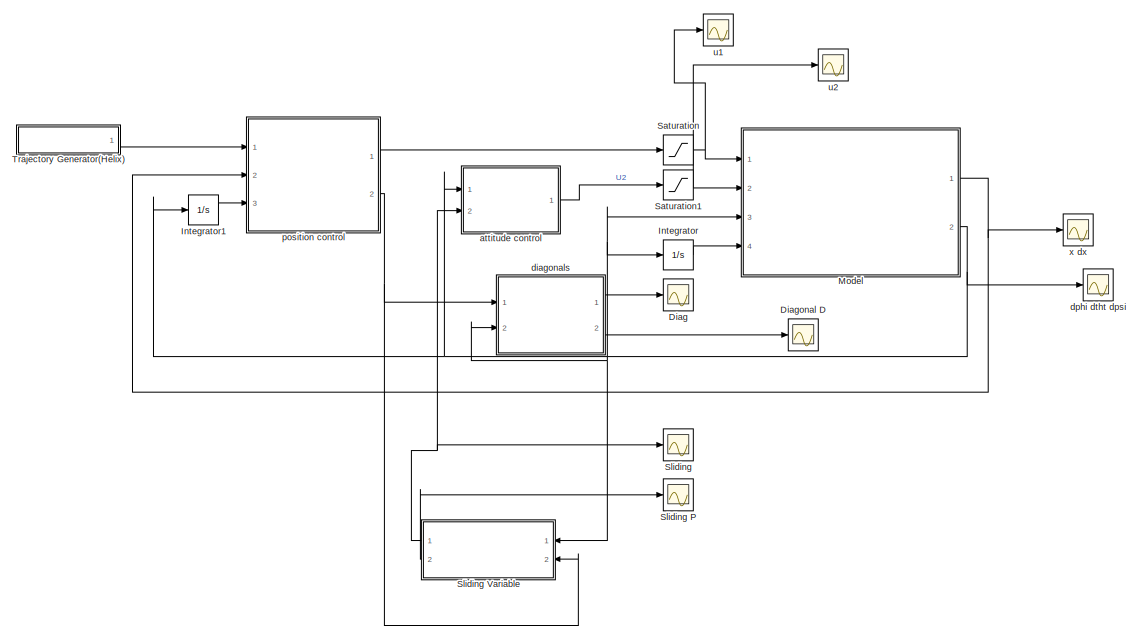
[diagram: root canvas - part 1/3, middle left region]
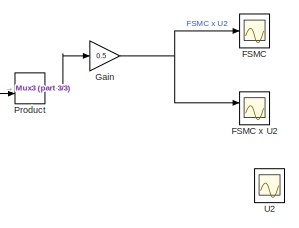
[diagram: root canvas - part 2/3, top right region]
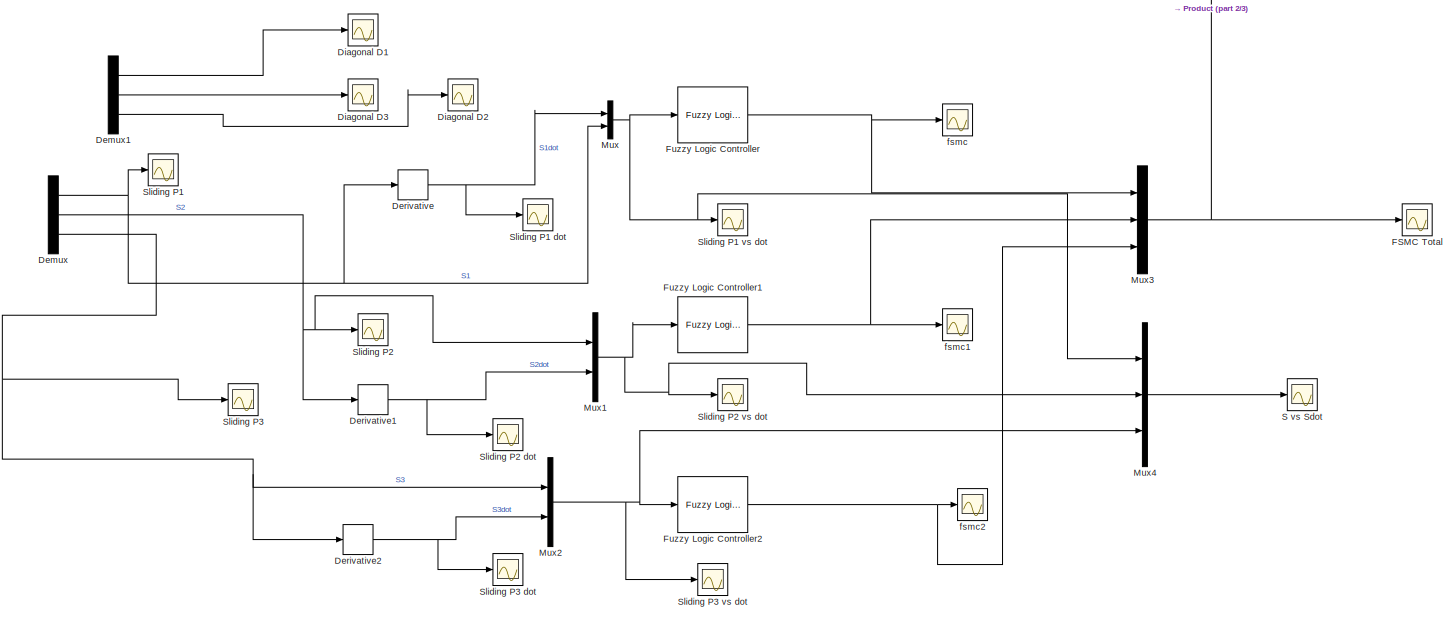
[diagram: root canvas - part 3/3, bottom right region]
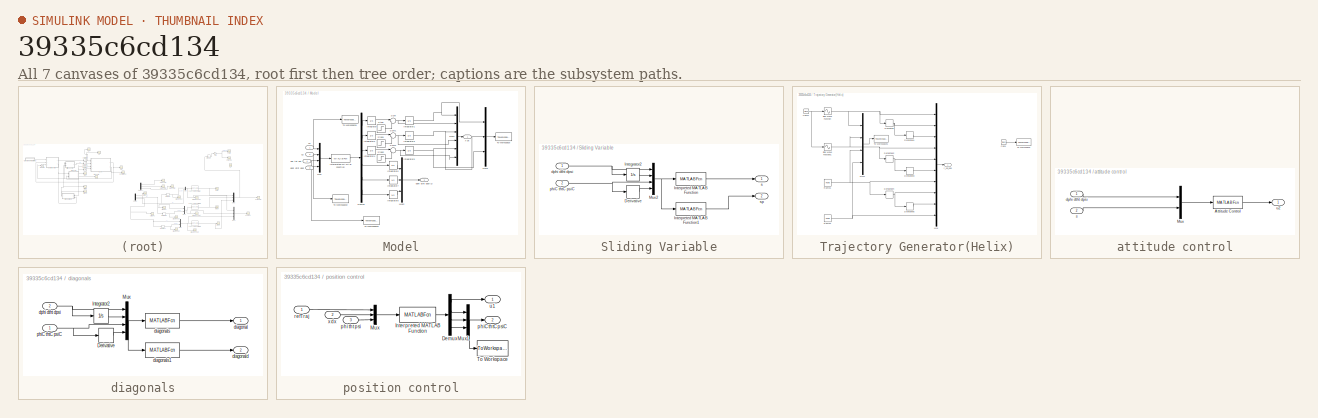
[diagram: thumbnail index - all 7 canvases of the model, root first then tree order]
MODEL slx_39335c6cd134
KIND model
CONFIG AbsTol = auto
CONFIG EnableMultiTasking = on
CONFIG FixedStep = 0.01
CONFIG MaxStep = auto
CONFIG MinStep = auto
CONFIG RelTol = 1e-3
CONFIG SampleTimeConstraint = Unconstrained
CONFIG SolverName = ode3
CONFIG StartTime = 0.0
CONFIG StopTime = 30
BLOCK [Demux] Demux
  Commented = on
  Outputs = 3
  Ports = [1, 3]
BLOCK [Demux] Demux1
  Commented = on
  Outputs = 3
  Ports = [1, 3]
BLOCK [Derivative] Derivative
  Commented = on
BLOCK [Derivative] Derivative1
  Commented = on
BLOCK [Derivative] Derivative2
  Commented = on
BLOCK [Scope] Diag
  Floating = off
  NumInputPorts = 1
  Ports = [1]
  ScopeSpecificationString = Simulink.scopes.TimeScopeBlockCfg('CurrentConfiguration', extmgr.ConfigurationSet(extmgr.Configuration('Core','General UI',true),extmgr.Configuration('Core','Source UI',true),extmgr.Configuration('Sources','WiredSimulink',true),extmgr.Configuration('Visuals','Time Domain',true,'SerializedDisplays',{struct('MinYLimReal','-0.00925','MaxYLimReal','0.08321','YLabelReal','','MinYLimMag','0.00000','MaxY...<+1365ch>
BLOCK [Scope] Diagonal D
  Floating = off
  NumInputPorts = 1
  Ports = [1]
  ScopeSpecificationString = Simulink.scopes.TimeScopeBlockCfg('CurrentConfiguration', extmgr.ConfigurationSet(extmgr.Configuration('Core','General UI',true),extmgr.Configuration('Core','Source UI',true),extmgr.Configuration('Sources','WiredSimulink',true,'DataLoggingVariableName','ScopeData1'),extmgr.Configuration('Visuals','Time Domain',true),extmgr.Configuration('Tools','Plot Navigation',true),extmgr.Configuration('Tools',...<+40ch>
BLOCK [Scope] Diagonal D1
  Commented = on
  Floating = off
  NumInputPorts = 1
  Ports = [1]
  ScopeSpecificationString = Simulink.scopes.TimeScopeBlockCfg('CurrentConfiguration', extmgr.ConfigurationSet(extmgr.Configuration('Core','General UI',true),extmgr.Configuration('Core','Source UI',true),extmgr.Configuration('Sources','WiredSimulink',true,'DataLoggingVariableName','ScopeData6'),extmgr.Configuration('Visuals','Time Domain',true,'SerializedDisplays',{struct('MinYLimReal','-0.00925','MaxYLimReal','0.08321','YLab...<+1367ch>
BLOCK [Scope] Diagonal D2
  Commented = on
  Floating = off
  NumInputPorts = 1
  Ports = [1]
  ScopeSpecificationString = Simulink.scopes.TimeScopeBlockCfg('CurrentConfiguration', extmgr.ConfigurationSet(extmgr.Configuration('Core','General UI',true),extmgr.Configuration('Core','Source UI',true),extmgr.Configuration('Sources','WiredSimulink',true,'DataLoggingVariableName','ScopeData7'),extmgr.Configuration('Visuals','Time Domain',true,'SerializedDisplays',{struct('MinYLimReal','-1.00000','MaxYLimReal','1.00000','YLab...<+1367ch>
BLOCK [Scope] Diagonal D3
  Commented = on
  Floating = off
  NumInputPorts = 1
  Ports = [1]
  ScopeSpecificationString = Simulink.scopes.TimeScopeBlockCfg('CurrentConfiguration', extmgr.ConfigurationSet(extmgr.Configuration('Core','General UI',true),extmgr.Configuration('Core','Source UI',true),extmgr.Configuration('Sources','WiredSimulink',true,'DataLoggingVariableName','ScopeData8'),extmgr.Configuration('Visuals','Time Domain',true,'SerializedDisplays',{struct('MinYLimReal','-0.00713','MaxYLimReal','0.06413','YLab...<+1367ch>
BLOCK [Scope] FSMC
  Commented = on
  Floating = off
  NumInputPorts = 1
  Ports = [1]
  ScopeSpecificationString = Simulink.scopes.TimeScopeBlockCfg('CurrentConfiguration', extmgr.ConfigurationSet(extmgr.Configuration('Core','General UI',true),extmgr.Configuration('Core','Source UI',true),extmgr.Configuration('Sources','WiredSimulink',true,'DataLoggingVariableName','ScopeData2'),extmgr.Configuration('Visuals','Time Domain',true,'SerializedDisplays',{struct('MinYLimReal','-0.63204','MaxYLimReal','0.53851','YLab...<+1457ch>
BLOCK [Scope] FSMC Total
  Commented = on
  Floating = off
  NumInputPorts = 1
  Ports = [1]
  ScopeSpecificationString = Simulink.scopes.TimeScopeBlockCfg('CurrentConfiguration', extmgr.ConfigurationSet(extmgr.Configuration('Core','General UI',true),extmgr.Configuration('Core','Source UI',true),extmgr.Configuration('Sources','WiredSimulink',true,'DataLoggingVariableName','ScopeData1'),extmgr.Configuration('Visuals','Time Domain',true,'SerializedDisplays',{struct('MinYLimReal','-5.00000','MaxYLimReal','5.00000','YLab...<+1476ch>
BLOCK [Scope] FSMC x U2
  Commented = on
  Floating = off
  NumInputPorts = 2
  Ports = [2]
  ScopeSpecificationString = Simulink.scopes.TimeScopeBlockCfg('CurrentConfiguration', extmgr.ConfigurationSet(extmgr.Configuration('Core','General UI',true),extmgr.Configuration('Core','Source UI',true),extmgr.Configuration('Sources','WiredSimulink',true,'DataLoggingVariableName','ScopeData1'),extmgr.Configuration('Visuals','Time Domain',true,'SerializedDisplays',{struct('MinYLimReal','-10.00000','MaxYLimReal','10.00000','YL...<+1513ch>
BLOCK [Reference] Fuzzy Logic Controller  REF=fuzblock/Fuzzy Logic   (lib defined in mdl_858b3b3e7478)
Controller
  Commented = on
  Ports = [1, 1]
  SourceBlock = fuzblock/Fuzzy Logic \nController
  SourceProductBaseCode = FL
  SourceType = Fuzzy Inference System
BLOCK [Reference] Fuzzy Logic Controller1  REF=fuzblock/Fuzzy Logic   (lib defined in mdl_858b3b3e7478)
Controller
  Commented = on
  Ports = [1, 1]
  SourceBlock = fuzblock/Fuzzy Logic \nController
  SourceProductBaseCode = FL
  SourceType = Fuzzy Inference System
BLOCK [Reference] Fuzzy Logic Controller2  REF=fuzblock/Fuzzy Logic   (lib defined in mdl_858b3b3e7478)
Controller
  Commented = on
  Ports = [1, 1]
  SourceBlock = fuzblock/Fuzzy Logic \nController
  SourceProductBaseCode = FL
  SourceType = Fuzzy Inference System
BLOCK [Gain] Gain
  Commented = on
  Gain = 0.5
BLOCK [Integrator] Integrator
  Ports = [1, 1]
BLOCK [Integrator] Integrator1
  Ports = [1, 1]
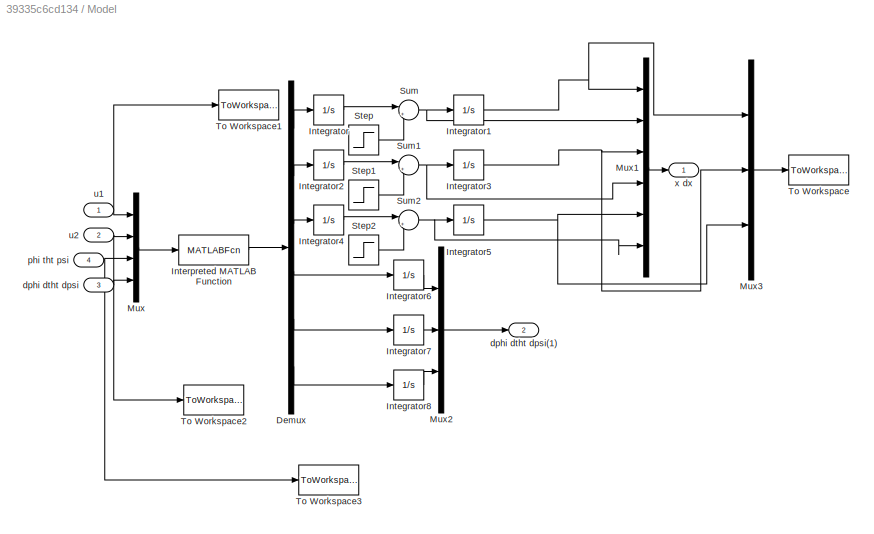
BLOCK [SubSystem] Model
  Ports = [4, 2]
  RequestExecContextInheritance = off
BLOCK [Demux] Model/Demux
  Outputs = 6
  Ports = [1, 6]
BLOCK [Integrator] Model/Integrator
  Ports = [1, 1]
BLOCK [Integrator] Model/Integrator1
  Ports = [1, 1]
BLOCK [Integrator] Model/Integrator2
  Ports = [1, 1]
BLOCK [Integrator] Model/Integrator3
  InitialCondition = 8
  Ports = [1, 1]
BLOCK [Integrator] Model/Integrator4
  Ports = [1, 1]
BLOCK [Integrator] Model/Integrator5
  InitialCondition = -8
  Ports = [1, 1]
BLOCK [Integrator] Model/Integrator6
  Ports = [1, 1]
BLOCK [Integrator] Model/Integrator7
  Ports = [1, 1]
BLOCK [Integrator] Model/Integrator8
  Ports = [1, 1]
BLOCK [MATLABFcn] Model/Interpreted MATLAB Function
  MATLABFcn = model(u)
  OutputDimensions = 6
  Ports = [1, 1]
BLOCK [Mux] Model/Mux
  DisplayOption = bar
  Ports = [4, 1]
BLOCK [Mux] Model/Mux1
  DisplayOption = bar
  Inputs = 6
  Ports = [6, 1]
BLOCK [Mux] Model/Mux2
  DisplayOption = bar
  Inputs = 3
  Ports = [3, 1]
BLOCK [Mux] Model/Mux3
  DisplayOption = bar
  Inputs = 3
  Ports = [3, 1]
BLOCK [Step] Model/Step
  After = 5
  SampleTime = 0
  Time = 25
BLOCK [Step] Model/Step1
  After = 5
  SampleTime = 0
  Time = 25
BLOCK [Step] Model/Step2
  After = 5
  SampleTime = 0
  Time = 25
BLOCK [Sum] Model/Sum
  Inputs = |++
  Ports = [2, 1]
BLOCK [Sum] Model/Sum1
  Inputs = |++
  Ports = [2, 1]
BLOCK [Sum] Model/Sum2
  Inputs = |++
  Ports = [2, 1]
BLOCK [ToWorkspace] Model/To Workspace
  FixptAsFi = on
  MaxDataPoints = inf
  Ports = [1]
  SampleTime = -1
  VariableName = xyz
BLOCK [ToWorkspace] Model/To Workspace1
  FixptAsFi = on
  MaxDataPoints = inf
  Ports = [1]
  SampleTime = -1
  VariableName = u1
BLOCK [ToWorkspace] Model/To Workspace2
  FixptAsFi = on
  MaxDataPoints = inf
  Ports = [1]
  SampleTime = -1
  VariableName = u2
BLOCK [ToWorkspace] Model/To Workspace3
  FixptAsFi = on
  MaxDataPoints = inf
  Ports = [1]
  SampleTime = -1
  VariableName = phi_tht_psi
BLOCK [Inport] Model/dphi dtht dpsi
  Port = 3
BLOCK [Outport] Model/dphi dtht dpsi(1)
  Port = 2
BLOCK [Inport] Model/phi tht psi
  Port = 4
BLOCK [Inport] Model/u1
BLOCK [Inport] Model/u2
  Port = 2
BLOCK [Outport] Model/x dx
BLOCK [Mux] Mux
  Commented = on
  DisplayOption = bar
  Inputs = 2
  Ports = [2, 1]
BLOCK [Mux] Mux1
  Commented = on
  DisplayOption = bar
  Inputs = 2
  Ports = [2, 1]
BLOCK [Mux] Mux2
  Commented = on
  DisplayOption = bar
  Inputs = 2
  Ports = [2, 1]
BLOCK [Mux] Mux3
  Commented = on
  DisplayOption = bar
  Inputs = 3
  Ports = [3, 1]
BLOCK [Mux] Mux4
  Commented = on
  DisplayOption = bar
  Inputs = 3
  Ports = [3, 1]
BLOCK [Product] Product
  Commented = on
  Ports = [2, 1]
BLOCK [Scope] S vs Sdot
  Commented = on
  Floating = off
  NumInputPorts = 1
  Ports = [1]
  ScopeSpecificationString = Simulink.scopes.TimeScopeBlockCfg('CurrentConfiguration', extmgr.ConfigurationSet(extmgr.Configuration('Core','General UI',true),extmgr.Configuration('Core','Source UI',true),extmgr.Configuration('Sources','WiredSimulink',true,'DataLoggingVariableName','ScopeData7'),extmgr.Configuration('Visuals','Time Domain',true,'SerializedDisplays',{struct('MinYLimReal','-4329.59339','MaxYLimReal','2455.42017'...<+1476ch>
BLOCK [Saturate] Saturation
  LowerLimit = 0
  NameLocation = top
  UpperLimit = 2*m*g
BLOCK [Saturate] Saturation1
  LowerLimit = -0.2
  UpperLimit = 0.2
BLOCK [Scope] Sliding
  Floating = off
  NumInputPorts = 1
  Ports = [1]
  ScopeSpecificationString = Simulink.scopes.TimeScopeBlockCfg('CurrentConfiguration', extmgr.ConfigurationSet(extmgr.Configuration('Core','General UI',true),extmgr.Configuration('Core','Source UI',true),extmgr.Configuration('Sources','WiredSimulink',true,'DataLoggingVariableName','ScopeData2'),extmgr.Configuration('Visuals','Time Domain',true,'SerializedDisplays',{struct('MinYLimReal','-1740.33859','MaxYLimReal','193.37095',...<+1445ch>
BLOCK [Scope] Sliding P
  Floating = off
  NumInputPorts = 1
  Ports = [1]
  ScopeSpecificationString = Simulink.scopes.TimeScopeBlockCfg('CurrentConfiguration', extmgr.ConfigurationSet(extmgr.Configuration('Core','General UI',true),extmgr.Configuration('Core','Source UI',true),extmgr.Configuration('Sources','WiredSimulink',true,'DataLoggingVariableName','ScopeData1'),extmgr.Configuration('Visuals','Time Domain',true,'SerializedDisplays',{struct('MinYLimReal','-306.04502','MaxYLimReal','34.005','YLa...<+1433ch>
BLOCK [Scope] Sliding P1
  Commented = on
  Floating = off
  NumInputPorts = 1
  Ports = [1]
  ScopeSpecificationString = Simulink.scopes.TimeScopeBlockCfg('CurrentConfiguration', extmgr.ConfigurationSet(extmgr.Configuration('Core','General UI',true),extmgr.Configuration('Core','Source UI',true),extmgr.Configuration('Sources','WiredSimulink',true,'DataLoggingVariableName','ScopeData3'),extmgr.Configuration('Visuals','Time Domain',true,'SerializedDisplays',{struct('MinYLimReal','-28.42401','MaxYLimReal','36.37178','YL...<+1426ch>
BLOCK [Scope] Sliding P1 dot
  Commented = on
  Floating = off
  NumInputPorts = 1
  Ports = [1]
  ScopeSpecificationString = Simulink.scopes.TimeScopeBlockCfg('CurrentConfiguration', extmgr.ConfigurationSet(extmgr.Configuration('Core','General UI',true),extmgr.Configuration('Core','Source UI',true),extmgr.Configuration('Sources','WiredSimulink',true,'DataLoggingVariableName','ScopeData1'),extmgr.Configuration('Visuals','Time Domain',true,'SerializedDisplays',{struct('MinYLimReal','-3263.97784','MaxYLimReal','3618.90081'...<+1445ch>
BLOCK [Scope] Sliding P1 vs dot
  Commented = on
  Floating = off
  NumInputPorts = 1
  Ports = [1]
  ScopeSpecificationString = Simulink.scopes.TimeScopeBlockCfg('CurrentConfiguration', extmgr.ConfigurationSet(extmgr.Configuration('Core','General UI',true),extmgr.Configuration('Core','Source UI',true),extmgr.Configuration('Sources','WiredSimulink',true,'DataLoggingVariableName','ScopeData4'),extmgr.Configuration('Visuals','Time Domain',true,'SerializedDisplays',{struct('MinYLimReal','-951.34421','MaxYLimReal','446.99576','...<+1423ch>
BLOCK [Scope] Sliding P2
  Commented = on
  Floating = off
  NumInputPorts = 1
  Ports = [1]
  ScopeSpecificationString = Simulink.scopes.TimeScopeBlockCfg('CurrentConfiguration', extmgr.ConfigurationSet(extmgr.Configuration('Core','General UI',true),extmgr.Configuration('Core','Source UI',true),extmgr.Configuration('Sources','WiredSimulink',true,'DataLoggingVariableName','ScopeData4'),extmgr.Configuration('Visuals','Time Domain',true,'SerializedDisplays',{struct('MinYLimReal','-91.0264','MaxYLimReal','51.62738','YLa...<+1422ch>
BLOCK [Scope] Sliding P2 dot
  Commented = on
  Floating = off
  NumInputPorts = 1
  Ports = [1]
  ScopeSpecificationString = Simulink.scopes.TimeScopeBlockCfg('CurrentConfiguration', extmgr.ConfigurationSet(extmgr.Configuration('Core','General UI',true),extmgr.Configuration('Core','Source UI',true),extmgr.Configuration('Sources','WiredSimulink',true,'DataLoggingVariableName','ScopeData2'),extmgr.Configuration('Visuals','Time Domain',true,'SerializedDisplays',{struct('MinYLimReal','-8990.40556','MaxYLimReal','10065.4342'...<+1445ch>
BLOCK [Scope] Sliding P2 vs dot
  Commented = on
  Floating = off
  NumInputPorts = 1
  Ports = [1]
  ScopeSpecificationString = Simulink.scopes.TimeScopeBlockCfg('CurrentConfiguration', extmgr.ConfigurationSet(extmgr.Configuration('Core','General UI',true),extmgr.Configuration('Core','Source UI',true),extmgr.Configuration('Sources','WiredSimulink',true,'DataLoggingVariableName','ScopeData5'),extmgr.Configuration('Visuals','Time Domain',true,'SerializedDisplays',{struct('MinYLimReal','-32261.38514','MaxYLimReal','19262.3115...<+1410ch>
BLOCK [Scope] Sliding P3
  Commented = on
  Floating = off
  NumInputPorts = 1
  Ports = [1]
  ScopeSpecificationString = Simulink.scopes.TimeScopeBlockCfg('CurrentConfiguration', extmgr.ConfigurationSet(extmgr.Configuration('Core','General UI',true),extmgr.Configuration('Core','Source UI',true),extmgr.Configuration('Sources','WiredSimulink',true,'DataLoggingVariableName','ScopeData5'),extmgr.Configuration('Visuals','Time Domain',true,'SerializedDisplays',{struct('MinYLimReal','-0.17199','MaxYLimReal','0.29067','YLab...<+1361ch>
BLOCK [Scope] Sliding P3 dot
  Commented = on
  Floating = off
  NumInputPorts = 1
  Ports = [1]
  ScopeSpecificationString = Simulink.scopes.TimeScopeBlockCfg('CurrentConfiguration', extmgr.ConfigurationSet(extmgr.Configuration('Core','General UI',true),extmgr.Configuration('Core','Source UI',true),extmgr.Configuration('Sources','WiredSimulink',true,'DataLoggingVariableName','ScopeData3'),extmgr.Configuration('Visuals','Time Domain',true,'SerializedDisplays',{struct('MinYLimReal','-0.000000004','MaxYLimReal','0.00000001...<+1396ch>
BLOCK [Scope] Sliding P3 vs dot
  Commented = on
  Floating = off
  NumInputPorts = 1
  Ports = [1]
  ScopeSpecificationString = Simulink.scopes.TimeScopeBlockCfg('CurrentConfiguration', extmgr.ConfigurationSet(extmgr.Configuration('Core','General UI',true),extmgr.Configuration('Core','Source UI',true),extmgr.Configuration('Sources','WiredSimulink',true,'DataLoggingVariableName','ScopeData6'),extmgr.Configuration('Visuals','Time Domain',true,'SerializedDisplays',{struct('MinYLimReal','-0.000000004','MaxYLimReal','0.00000001...<+1401ch>
BLOCK [SubSystem] Sliding Variable
  Ports = [2, 2]
  RequestExecContextInheritance = off
BLOCK [Derivative] Sliding Variable/Derivative
BLOCK [Integrator] Sliding Variable/Integrator2
  NameLocation = top
  Ports = [1, 1]
BLOCK [MATLABFcn] Sliding Variable/Interpreted MATLAB Function
  MATLABFcn = sliding_var(u)
  OutputDimensions = 3
  Ports = [1, 1]
BLOCK [MATLABFcn] Sliding Variable/Interpreted MATLAB Function1
  MATLABFcn = sliding_var(u)
  OutputDimensions = 3
  Ports = [1, 1]
BLOCK [Mux] Sliding Variable/Mux2
  DisplayOption = bar
  Ports = [4, 1]
BLOCK [Inport] Sliding Variable/dphi dtht dpsi
BLOCK [Inport] Sliding Variable/phiC thtC psiC
  Port = 2
BLOCK [Outport] Sliding Variable/s
BLOCK [Outport] Sliding Variable/sp
  Port = 2
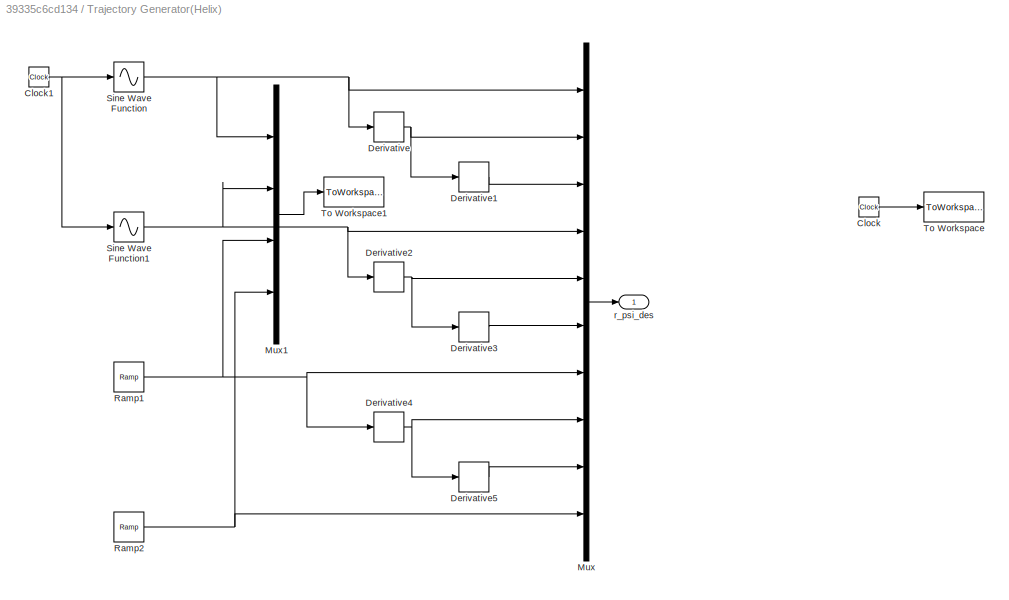
BLOCK [SubSystem] Trajectory Generator(Helix)
  Ports = [0, 1]
  RequestExecContextInheritance = off
BLOCK [Clock] Trajectory Generator(Helix)/Clock
BLOCK [Clock] Trajectory Generator(Helix)/Clock1
BLOCK [Derivative] Trajectory Generator(Helix)/Derivative
BLOCK [Derivative] Trajectory Generator(Helix)/Derivative1
BLOCK [Derivative] Trajectory Generator(Helix)/Derivative2
BLOCK [Derivative] Trajectory Generator(Helix)/Derivative3
BLOCK [Derivative] Trajectory Generator(Helix)/Derivative4
BLOCK [Derivative] Trajectory Generator(Helix)/Derivative5
BLOCK [Mux] Trajectory Generator(Helix)/Mux
  DisplayOption = bar
  Inputs = 10
  Ports = [10, 1]
BLOCK [Mux] Trajectory Generator(Helix)/Mux1
  DisplayOption = bar
  Ports = [4, 1]
BLOCK [Reference] Trajectory Generator(Helix)/Ramp1  REF=simulink/Sources/Ramp
  Ports = [0, 1]
  SourceBlock = simulink/Sources/Ramp
  SourceProductBaseCode = SL
  SourceType = Ramp
BLOCK [Reference] Trajectory Generator(Helix)/Ramp2  REF=simulink/Sources/Ramp
  Ports = [0, 1]
  SourceBlock = simulink/Sources/Ramp
  SourceProductBaseCode = SL
  SourceType = Ramp
BLOCK [Sin] Trajectory Generator(Helix)/Sine Wave Function
  Amplitude = 8
  Frequency = 0.1
  Ports = [1, 1]
  SampleTime = 0
  TimeSource = Use external signal
BLOCK [Sin] Trajectory Generator(Helix)/Sine Wave Function1
  Amplitude = 8
  Frequency = 0.1
  Phase = pi/2
  Ports = [1, 1]
  SampleTime = 0
  TimeSource = Use external signal
BLOCK [ToWorkspace] Trajectory Generator(Helix)/To Workspace
  FixptAsFi = on
  MaxDataPoints = inf
  Ports = [1]
  SampleTime = -1
  VariableName = t
BLOCK [ToWorkspace] Trajectory Generator(Helix)/To Workspace1
  FixptAsFi = on
  MaxDataPoints = inf
  Ports = [1]
  SampleTime = -1
  VariableName = ref
BLOCK [Outport] Trajectory Generator(Helix)/r_psi_des
BLOCK [Scope] U2
  Commented = on
  Floating = off
  NumInputPorts = 1
  Ports = [1]
  ScopeSpecificationString = Simulink.scopes.TimeScopeBlockCfg('CurrentConfiguration', extmgr.ConfigurationSet(extmgr.Configuration('Core','General UI',true),extmgr.Configuration('Core','Source UI',true),extmgr.Configuration('Sources','WiredSimulink',true,'DataLoggingVariableName','ScopeData1'),extmgr.Configuration('Visuals','Time Domain',true,'SerializedDisplays',{struct('MinYLimReal','-10.00000','MaxYLimReal','10.00000','YL...<+1471ch>
BLOCK [SubSystem] attitude control
  Ports = [2, 1]
  RequestExecContextInheritance = off
BLOCK [MATLABFcn] attitude control/Attitude Control
  MATLABFcn = attitude_control(u)
  OutputDimensions = 3
  Ports = [1, 1]
BLOCK [Mux] attitude control/Mux
  DisplayOption = bar
  Inputs = 2
  Ports = [2, 1]
BLOCK [Inport] attitude control/dphi dtht dpsi
BLOCK [Inport] attitude control/s
  Port = 2
BLOCK [Outport] attitude control/u2
BLOCK [SubSystem] diagonals
  Ports = [2, 2]
  RequestExecContextInheritance = off
BLOCK [Derivative] diagonals/Derivative
BLOCK [Integrator] diagonals/Integrator2
  NameLocation = top
  Ports = [1, 1]
BLOCK [Mux] diagonals/Mux
  DisplayOption = bar
  Ports = [4, 1]
BLOCK [Outport] diagonals/diagonal
BLOCK [Outport] diagonals/diagonald
  Port = 2
BLOCK [MATLABFcn] diagonals/diagonals
  MATLABFcn = diagonals(u)
  OutputDimensions = 3
  Ports = [1, 1]
BLOCK [MATLABFcn] diagonals/diagonals1
  MATLABFcn = diagonals(u)
  OutputDimensions = 3
  Ports = [1, 1]
BLOCK [Inport] diagonals/dphi dtht dpsi
  Port = 2
BLOCK [Inport] diagonals/phiC thtC psiC
BLOCK [Scope] dphi dtht dpsi
  Floating = off
  NumInputPorts = 1
  Ports = [1]
  ScopeSpecificationString = Simulink.scopes.TimeScopeBlockCfg('CurrentConfiguration', extmgr.ConfigurationSet(extmgr.Configuration('Core','General UI',true),extmgr.Configuration('Core','Source UI',true),extmgr.Configuration('Sources','WiredSimulink',true,'DataLoggingVariableName','ScopeData4'),extmgr.Configuration('Visuals','Time Domain',true),extmgr.Configuration('Tools','Plot Navigation',true),extmgr.Configuration('Tools',...<+40ch>
BLOCK [Scope] fsmc
  Commented = on
  Floating = off
  NumInputPorts = 1
  Ports = [1]
  ScopeSpecificationString = Simulink.scopes.TimeScopeBlockCfg('CurrentConfiguration', extmgr.ConfigurationSet(extmgr.Configuration('Core','General UI',true),extmgr.Configuration('Core','Source UI',true),extmgr.Configuration('Sources','WiredSimulink',true,'DataLoggingVariableName','ScopeData2'),extmgr.Configuration('Visuals','Time Domain',true,'SerializedDisplays',{struct('MinYLimReal','-17.2','MaxYLimReal','27.70737','YLabel...<+1468ch>
BLOCK [Scope] fsmc1
  Commented = on
  Floating = off
  NumInputPorts = 1
  Ports = [1]
  ScopeSpecificationString = Simulink.scopes.TimeScopeBlockCfg('CurrentConfiguration', extmgr.ConfigurationSet(extmgr.Configuration('Core','General UI',true),extmgr.Configuration('Core','Source UI',true),extmgr.Configuration('Sources','WiredSimulink',true,'DataLoggingVariableName','ScopeData1'),extmgr.Configuration('Visuals','Time Domain',true,'SerializedDisplays',{struct('MinYLimReal','-1.00000','MaxYLimReal','1.00000','YLab...<+1423ch>
BLOCK [Scope] fsmc2
  Commented = on
  Floating = off
  NumInputPorts = 1
  Ports = [1]
  ScopeSpecificationString = Simulink.scopes.TimeScopeBlockCfg('CurrentConfiguration', extmgr.ConfigurationSet(extmgr.Configuration('Core','General UI',true),extmgr.Configuration('Core','Source UI',true),extmgr.Configuration('Sources','WiredSimulink',true,'DataLoggingVariableName','ScopeData2'),extmgr.Configuration('Visuals','Time Domain',true,'SerializedDisplays',{struct('MinYLimReal','-1.00000','MaxYLimReal','1.00000','YLab...<+1423ch>
BLOCK [SubSystem] position control
  Ports = [3, 2]
  RequestExecContextInheritance = off
BLOCK [Demux] position control/Demux
  Ports = [1, 4]
BLOCK [MATLABFcn] position control/Interpreted MATLAB Function
  MATLABFcn = position_control(u)
  OutputDimensions = 4
  Ports = [1, 1]
BLOCK [Mux] position control/Mux
  DisplayOption = bar
  Inputs = 3
  Ports = [3, 1]
BLOCK [Mux] position control/Mux1
  DisplayOption = bar
  Inputs = 3
  Ports = [3, 1]
BLOCK [ToWorkspace] position control/To Workspace
  FixptAsFi = on
  MaxDataPoints = inf
  Ports = [1]
  SampleTime = -1
  VariableName = angc
BLOCK [Inport] position control/phi tht psi
  Port = 3
BLOCK [Outport] position control/phiC thtC psiC
  Port = 2
BLOCK [Inport] position control/refTraj
BLOCK [Outport] position control/u1
BLOCK [Inport] position control/x dx
  Port = 2
BLOCK [Scope] u1
  Floating = off
  NumInputPorts = 1
  Ports = [1]
  ScopeSpecificationString = Simulink.scopes.TimeScopeBlockCfg('CurrentConfiguration', extmgr.ConfigurationSet(extmgr.Configuration('Core','General UI',true),extmgr.Configuration('Core','Source UI',true),extmgr.Configuration('Sources','WiredSimulink',true,'DataLoggingVariableName','ScopeData1'),extmgr.Configuration('Visuals','Time Domain',true),extmgr.Configuration('Tools','Plot Navigation',true),extmgr.Configuration('Tools',...<+40ch>
BLOCK [Scope] u2
  Floating = off
  NumInputPorts = 1
  Ports = [1]
  ScopeSpecificationString = Simulink.scopes.TimeScopeBlockCfg('CurrentConfiguration', extmgr.ConfigurationSet(extmgr.Configuration('Core','General UI',true),extmgr.Configuration('Core','Source UI',true),extmgr.Configuration('Sources','WiredSimulink',true,'DataLoggingVariableName','ScopeData2'),extmgr.Configuration('Visuals','Time Domain',true),extmgr.Configuration('Tools','Plot Navigation',true),extmgr.Configuration('Tools',...<+40ch>
BLOCK [Scope] x dx
  Floating = off
  NumInputPorts = 1
  Ports = [1]
  ScopeSpecificationString = Simulink.scopes.TimeScopeBlockCfg('CurrentConfiguration', extmgr.ConfigurationSet(extmgr.Configuration('Core','General UI',true),extmgr.Configuration('Core','Source UI',true),extmgr.Configuration('Sources','WiredSimulink',true,'DataLoggingVariableName','ScopeData3'),extmgr.Configuration('Visuals','Time Domain',true),extmgr.Configuration('Tools','Plot Navigation',true),extmgr.Configuration('Tools',...<+40ch>
LINE Demux1:1 -> Diagonal D1:1
LINE Demux1:2 -> Diagonal D3:1
LINE Demux1:3 -> Diagonal D2:1
NET Demux:1 -> Derivative:1, Mux:2, Sliding P1:1
NET Demux:2 -> Derivative1:1, Mux1:1, Sliding P2:1
NET Demux:3 -> Derivative2:1, Mux2:1, Sliding P3:1
NET Derivative1:1 -> Mux1:2, Sliding P2 dot:1
NET Derivative2:1 -> Mux2:2, Sliding P3 dot:1
NET Derivative:1 -> Mux:1, Sliding P1 dot:1
NET Fuzzy Logic Controller1:1 -> Mux3:2, fsmc1:1
NET Fuzzy Logic Controller2:1 -> Mux3:3, fsmc2:1
NET Fuzzy Logic Controller:1 -> Mux3:1, fsmc:1
NET Gain:1 -> FSMC x U2:1, FSMC:1
LINE Integrator1:1 -> position control:3
LINE Integrator:1 -> Model:4
LINE Model/Demux:1 -> Model/Integrator:1
LINE Model/Demux:2 -> Model/Integrator2:1
LINE Model/Demux:3 -> Model/Integrator4:1
LINE Model/Demux:4 -> Model/Integrator6:1
LINE Model/Demux:5 -> Model/Integrator7:1
LINE Model/Demux:6 -> Model/Integrator8:1
NET Model/Integrator1:1 -> Model/Mux1:1, Model/Mux3:1
LINE Model/Integrator2:1 -> Model/Sum1:1
NET Model/Integrator3:1 -> Model/Mux1:3, Model/Mux3:2
LINE Model/Integrator4:1 -> Model/Sum2:1
NET Model/Integrator5:1 -> Model/Mux1:5, Model/Mux3:3
LINE Model/Integrator6:1 -> Model/Mux2:1
LINE Model/Integrator7:1 -> Model/Mux2:2
LINE Model/Integrator8:1 -> Model/Mux2:3
LINE Model/Integrator:1 -> Model/Sum:1
LINE Model/Interpreted MATLAB Function:1 -> Model/Demux:1
LINE Model/Mux1:1 -> Model/x dx:1
LINE Model/Mux2:1 -> Model/dphi dtht dpsi(1):1
LINE Model/Mux3:1 -> Model/To Workspace:1
LINE Model/Mux:1 -> Model/Interpreted MATLAB Function:1
LINE Model/Step1:1 -> Model/Sum1:2
LINE Model/Step2:1 -> Model/Sum2:2
LINE Model/Step:1 -> Model/Sum:2
NET Model/Sum1:1 -> Model/Integrator3:1, Model/Mux1:4
NET Model/Sum2:1 -> Model/Integrator5:1, Model/Mux1:6
NET Model/Sum:1 -> Model/Integrator1:1, Model/Mux1:2
LINE Model/dphi dtht dpsi:1 -> Model/Mux:4
NET Model/phi tht psi:1 -> Model/Mux:3, Model/To Workspace3:1
NET Model/u1:1 -> Model/Mux:1, Model/To Workspace1:1
NET Model/u2:1 -> Model/Mux:2, Model/To Workspace2:1
NET Model:1 -> position control:2, x dx:1
NET Model:2 -> Integrator1:1, Integrator:1, Model:3, Sliding Variable:1, attitude control:1, diagonals:2, dphi dtht dpsi:1
NET Mux1:1 -> Fuzzy Logic Controller1:1, Mux4:2, Sliding P2 vs dot:1
NET Mux2:1 -> Fuzzy Logic Controller2:1, Mux4:3, Sliding P3 vs dot:1
NET Mux3:1 -> FSMC Total:1, Product:2
LINE Mux4:1 -> S vs Sdot:1
NET Mux:1 -> Fuzzy Logic Controller:1, Mux4:1, Sliding P1 vs dot:1
LINE Product:1 -> Gain:1
NET Saturation1:1 -> Model:2, u2:1
NET Saturation:1 -> Model:1, u1:1
LINE Sliding Variable/Derivative:1 -> Sliding Variable/Mux2:4
LINE Sliding Variable/Integrator2:1 -> Sliding Variable/Mux2:2
LINE Sliding Variable/Interpreted MATLAB Function1:1 -> Sliding Variable/sp:1
LINE Sliding Variable/Interpreted MATLAB Function:1 -> Sliding Variable/s:1
NET Sliding Variable/Mux2:1 -> Sliding Variable/Interpreted MATLAB Function1:1, Sliding Variable/Interpreted MATLAB Function:1
NET Sliding Variable/dphi dtht dpsi:1 -> Sliding Variable/Integrator2:1, Sliding Variable/Mux2:1
NET Sliding Variable/phiC thtC psiC:1 -> Sliding Variable/Derivative:1, Sliding Variable/Mux2:3
NET Sliding Variable:1 -> Sliding:1, attitude control:2
LINE Sliding Variable:2 -> Sliding P:1
NET Trajectory Generator(Helix)/Clock1:1 -> Trajectory Generator(Helix)/Sine Wave Function1:1, Trajectory Generator(Helix)/Sine Wave Function:1
LINE Trajectory Generator(Helix)/Clock:1 -> Trajectory Generator(Helix)/To Workspace:1
LINE Trajectory Generator(Helix)/Derivative1:1 -> Trajectory Generator(Helix)/Mux:3
NET Trajectory Generator(Helix)/Derivative2:1 -> Trajectory Generator(Helix)/Derivative3:1, Trajectory Generator(Helix)/Mux:5
LINE Trajectory Generator(Helix)/Derivative3:1 -> Trajectory Generator(Helix)/Mux:6
NET Trajectory Generator(Helix)/Derivative4:1 -> Trajectory Generator(Helix)/Derivative5:1, Trajectory Generator(Helix)/Mux:8
LINE Trajectory Generator(Helix)/Derivative5:1 -> Trajectory Generator(Helix)/Mux:9
NET Trajectory Generator(Helix)/Derivative:1 -> Trajectory Generator(Helix)/Derivative1:1, Trajectory Generator(Helix)/Mux:2
LINE Trajectory Generator(Helix)/Mux1:1 -> Trajectory Generator(Helix)/To Workspace1:1
LINE Trajectory Generator(Helix)/Mux:1 -> Trajectory Generator(Helix)/r_psi_des:1
NET Trajectory Generator(Helix)/Ramp1:1 -> Trajectory Generator(Helix)/Derivative4:1, Trajectory Generator(Helix)/Mux1:3, Trajectory Generator(Helix)/Mux:7
NET Trajectory Generator(Helix)/Ramp2:1 -> Trajectory Generator(Helix)/Mux1:4, Trajectory Generator(Helix)/Mux:10
NET Trajectory Generator(Helix)/Sine Wave Function1:1 -> Trajectory Generator(Helix)/Derivative2:1, Trajectory Generator(Helix)/Mux1:2, Trajectory Generator(Helix)/Mux:4
NET Trajectory Generator(Helix)/Sine Wave Function:1 -> Trajectory Generator(Helix)/Derivative:1, Trajectory Generator(Helix)/Mux1:1, Trajectory Generator(Helix)/Mux:1
LINE Trajectory Generator(Helix):1 -> position control:1
LINE attitude control/Attitude Control:1 -> attitude control/u2:1
LINE attitude control/Mux:1 -> attitude control/Attitude Control:1
LINE attitude control/dphi dtht dpsi:1 -> attitude control/Mux:1
LINE attitude control/s:1 -> attitude control/Mux:2
LINE attitude control:1 -> Saturation1:1
LINE diagonals/Derivative:1 -> diagonals/Mux:4
LINE diagonals/Integrator2:1 -> diagonals/Mux:2
NET diagonals/Mux:1 -> diagonals/diagonals1:1, diagonals/diagonals:1
LINE diagonals/diagonals1:1 -> diagonals/diagonald:1
LINE diagonals/diagonals:1 -> diagonals/diagonal:1
NET diagonals/dphi dtht dpsi:1 -> diagonals/Integrator2:1, diagonals/Mux:1
NET diagonals/phiC thtC psiC:1 -> diagonals/Derivative:1, diagonals/Mux:3
LINE diagonals:1 -> Diag:1
LINE diagonals:2 -> Diagonal D:1
LINE position control/Demux:1 -> position control/u1:1
LINE position control/Demux:2 -> position control/Mux1:1
LINE position control/Demux:3 -> position control/Mux1:2
LINE position control/Demux:4 -> position control/Mux1:3
LINE position control/Interpreted MATLAB Function:1 -> position control/Demux:1
NET position control/Mux1:1 -> position control/To Workspace:1, position control/phiC thtC psiC:1
LINE position control/Mux:1 -> position control/Interpreted MATLAB Function:1
LINE position control/phi tht psi:1 -> position control/Mux:3
LINE position control/refTraj:1 -> position control/Mux:1
LINE position control/x dx:1 -> position control/Mux:2
LINE position control:1 -> Saturation:1
NET position control:2 -> Sliding Variable:2, diagonals:1
note: NET lines group one-source signal fan-out (src -> all destinations, sorted); 1:1 wires keep LINE
